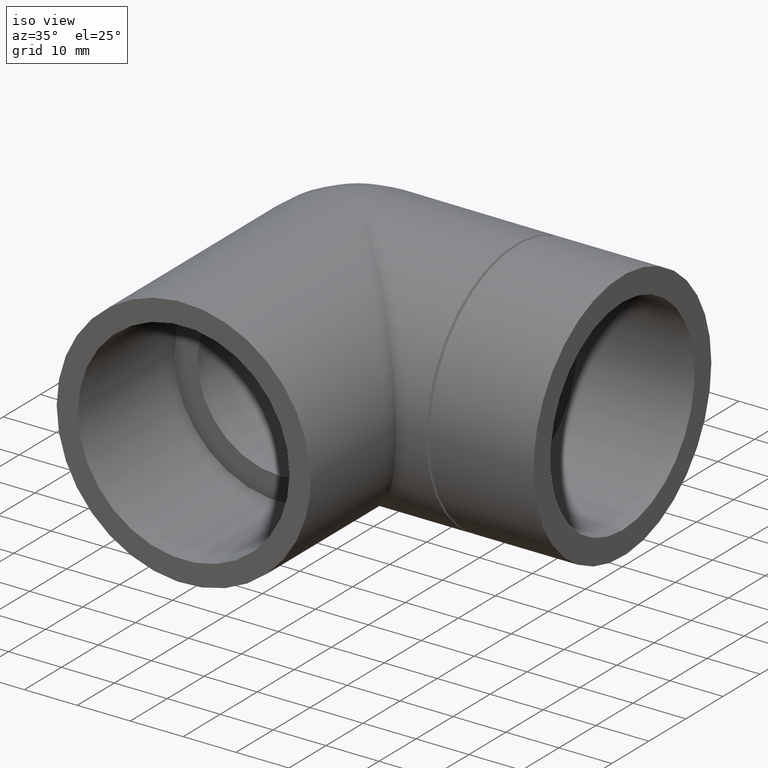
[diagram: clean part render]
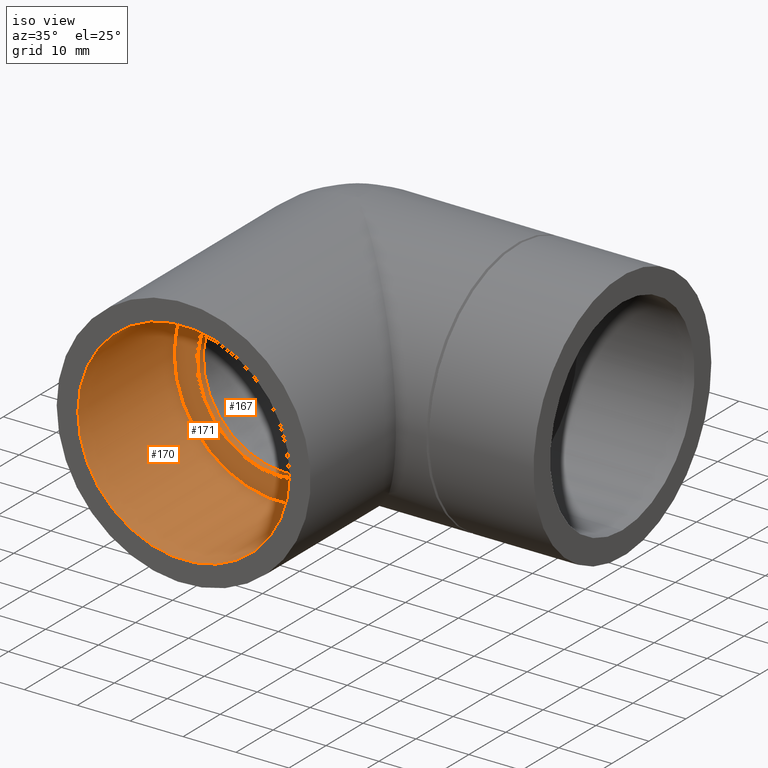
[diagram: same view with one multi-face feature highlighted, each face labeled with its STEP entity id]
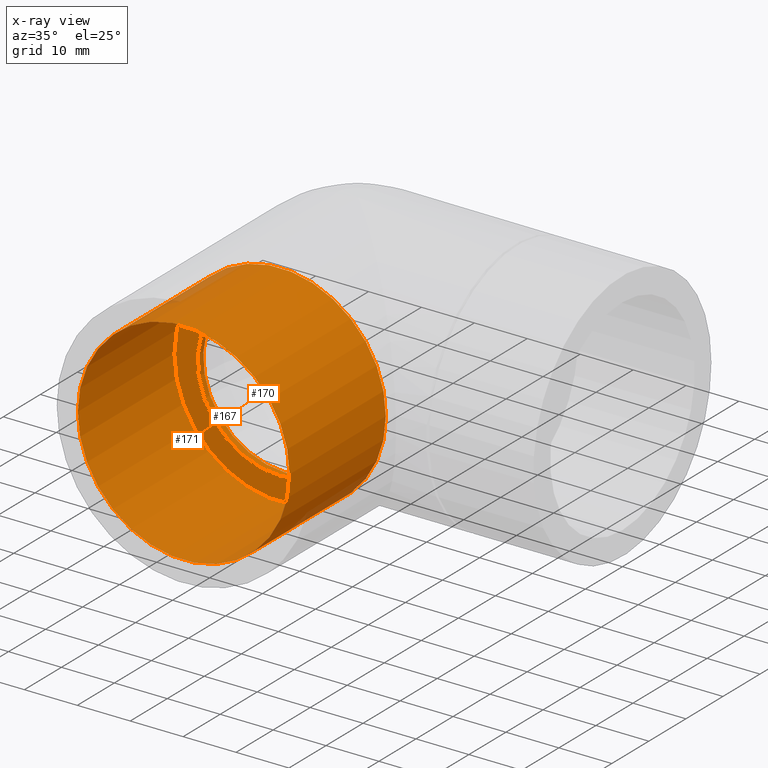
[diagram: x-ray of the same camera — body ghosted, the whole feature saturated]
A machine part, iso view. The highlighted faces form ONE feature: a stepped (counterbored) hole: 2 coaxial cylindrical walls of radii 15.5808 -> 20 mm joined by 1 annular planar shoulder face(s). The faces share edges in the B-rep.
The next image is the same camera in x-ray: the body ghosted and the whole hole feature saturated, so the bore chain is visible through the body.
Their STEP definitions:
[1] entity #170 (Cylinder):
#27=FACE_BOUND('',#60,.T.);
#41=FACE_OUTER_BOUND('',#59,.T.);
#59=EDGE_LOOP('',(#134));
#60=EDGE_LOOP('',(#135));
#86=CIRCLE('',#192,20.);
#87=CIRCLE('',#193,20.);
#101=VERTEX_POINT('',#292);
#102=VERTEX_POINT('',#294);
#116=EDGE_CURVE('',#101,#101,#86,.T.);
#117=EDGE_CURVE('',#102,#102,#87,.T.);
#134=ORIENTED_EDGE('',*,*,#116,.T.);
#135=ORIENTED_EDGE('',*,*,#117,.F.);
#162=CYLINDRICAL_SURFACE('',#191,20.);
#170=ADVANCED_FACE('',(#41,#27),#162,.F.);
#191=AXIS2_PLACEMENT_3D('',#291,#231,#232);
#192=AXIS2_PLACEMENT_3D('',#293,#233,#234);
#193=AXIS2_PLACEMENT_3D('',#295,#235,#236);
#231=DIRECTION('center_axis',(-1.70803542250024E-16,1.,0.));
#232=DIRECTION('ref_axis',(-1.,-1.70803542250024E-16,0.));
#233=DIRECTION('center_axis',(-1.22464679914735E-16,1.,0.));
#234=DIRECTION('ref_axis',(-1.,-1.22464679914735E-16,0.));
#235=DIRECTION('center_axis',(-1.22464679914735E-16,1.,0.));
#236=DIRECTION('ref_axis',(-1.,-1.70803542250024E-16,0.));
#291=CARTESIAN_POINT('Origin',(5.75583995599256E-15,-47.,0.));
#292=CARTESIAN_POINT('',(20.,-21.,2.44929359829471E-15));
#293=CARTESIAN_POINT('Origin',(1.31494785749194E-15,-21.,0.));
#294=CARTESIAN_POINT('',(20.,-47.,2.44929359829471E-15));
#295=CARTESIAN_POINT('Origin',(5.75583995599256E-15,-47.,0.));
[2] entity #167 (Cylinder):
#24=FACE_BOUND('',#54,.T.);
#38=FACE_OUTER_BOUND('',#53,.T.);
#53=EDGE_LOOP('',(#128));
#54=EDGE_LOOP('',(#129));
#82=CIRCLE('',#185,15.5808);
#83=CIRCLE('',#186,15.5808);
#97=VERTEX_POINT('',#281);
#98=VERTEX_POINT('',#283);
#112=EDGE_CURVE('',#97,#97,#82,.T.);
#113=EDGE_CURVE('',#98,#98,#83,.T.);
#128=ORIENTED_EDGE('',*,*,#112,.F.);
#129=ORIENTED_EDGE('',*,*,#113,.F.);
#160=CYLINDRICAL_SURFACE('',#184,15.5808);
#167=ADVANCED_FACE('',(#38,#24),#160,.F.);
#184=AXIS2_PLACEMENT_3D('',#280,#217,#218);
#185=AXIS2_PLACEMENT_3D('',#282,#219,#220);
#186=AXIS2_PLACEMENT_3D('',#284,#221,#222);
#217=DIRECTION('center_axis',(2.36383942479452E-17,-1.,0.));
#218=DIRECTION('ref_axis',(0.,0.,1.));
#219=DIRECTION('center_axis',(-1.22464679914735E-16,1.,0.));
#220=DIRECTION('ref_axis',(0.,0.,1.));
#221=DIRECTION('center_axis',(-2.83276944882399E-16,-1.,0.));
#222=DIRECTION('ref_axis',(0.,0.,1.));
#280=CARTESIAN_POINT('Origin',(7.32177861873785E-18,-19.476,0.));
#281=CARTESIAN_POINT('',(-1.8647509933629E-15,-21.,-15.5808));
#282=CARTESIAN_POINT('Origin',(4.33466914526064E-17,-21.,0.));
#283=CARTESIAN_POINT('',(-1.90077590619677E-15,-19.476,-15.5808));
#284=CARTESIAN_POINT('Origin',(7.32177861873785E-18,-19.476,0.));
[3] entity #171 (Plane):
#19=PLANE('',#194);
#28=FACE_BOUND('',#62,.T.);
#42=FACE_OUTER_BOUND('',#61,.T.);
#61=EDGE_LOOP('',(#136));
#62=EDGE_LOOP('',(#137));
#82=CIRCLE('',#185,15.5808);
#86=CIRCLE('',#192,20.);
#97=VERTEX_POINT('',#281);
#101=VERTEX_POINT('',#292);
#112=EDGE_CURVE('',#97,#97,#82,.T.);
#116=EDGE_CURVE('',#101,#101,#86,.T.);
#136=ORIENTED_EDGE('',*,*,#116,.F.);
#137=ORIENTED_EDGE('',*,*,#112,.T.);
#171=ADVANCED_FACE('',(#42,#28),#19,.T.);
#185=AXIS2_PLACEMENT_3D('',#282,#219,#220);
#192=AXIS2_PLACEMENT_3D('',#293,#233,#234);
#194=AXIS2_PLACEMENT_3D('',#296,#237,#238);
#219=DIRECTION('center_axis',(-1.22464679914735E-16,1.,0.));
#220=DIRECTION('ref_axis',(0.,0.,1.));
#233=DIRECTION('center_axis',(-1.22464679914735E-16,1.,0.));
#234=DIRECTION('ref_axis',(-1.,-1.22464679914735E-16,0.));
#237=DIRECTION('center_axis',(1.22464679914735E-16,-1.,0.));
#238=DIRECTION('ref_axis',(0.,0.,-1.));
#281=CARTESIAN_POINT('',(-1.8647509933629E-15,-21.,-15.5808));
#282=CARTESIAN_POINT('Origin',(4.33466914526064E-17,-21.,0.));
#292=CARTESIAN_POINT('',(20.,-21.,2.44929359829471E-15));
#293=CARTESIAN_POINT('Origin',(1.31494785749194E-15,-21.,0.));
#296=CARTESIAN_POINT('Origin',(9.57436748676251E-16,-21.,3.70074341541719E-16));